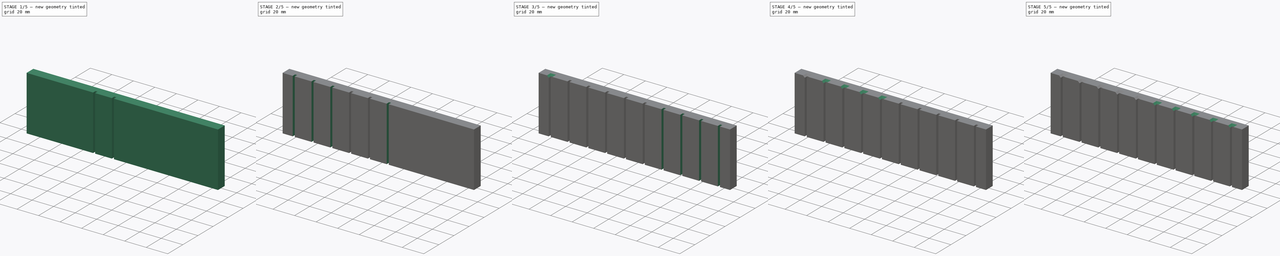
[diagram: build sequence overview — one tinted view per stage of 5, left to right]
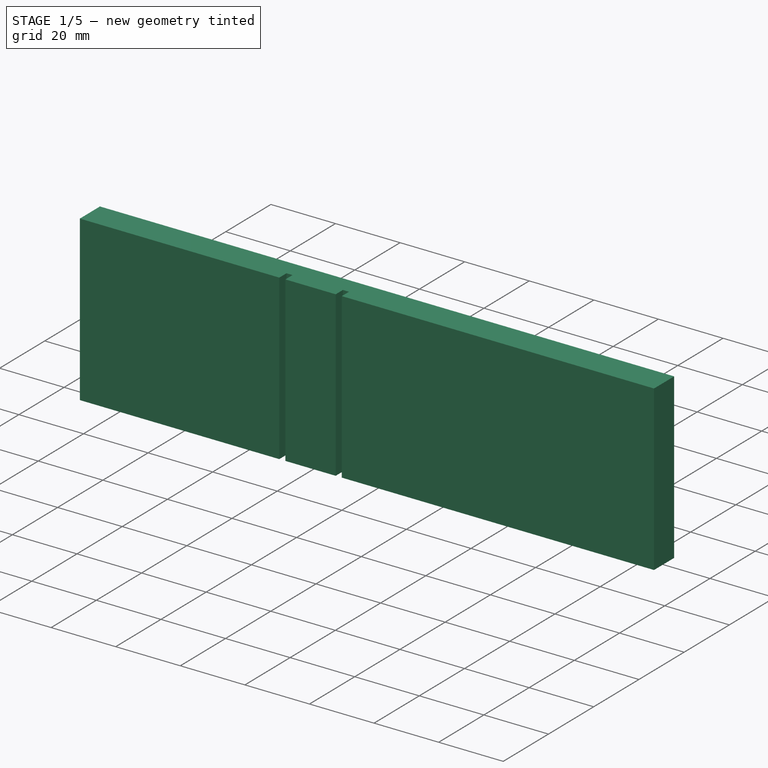
[diagram: stage 1 of 5 — iso view after this stage's code; geometry added in this stage tinted green]
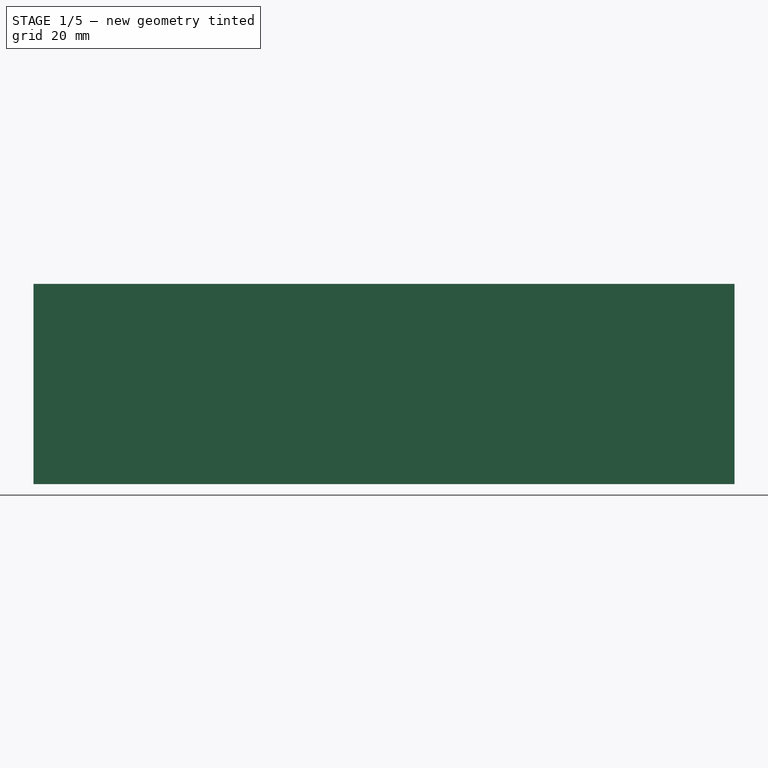
[diagram: stage 1 of 5 — front view after this stage's code; geometry added in this stage tinted green]
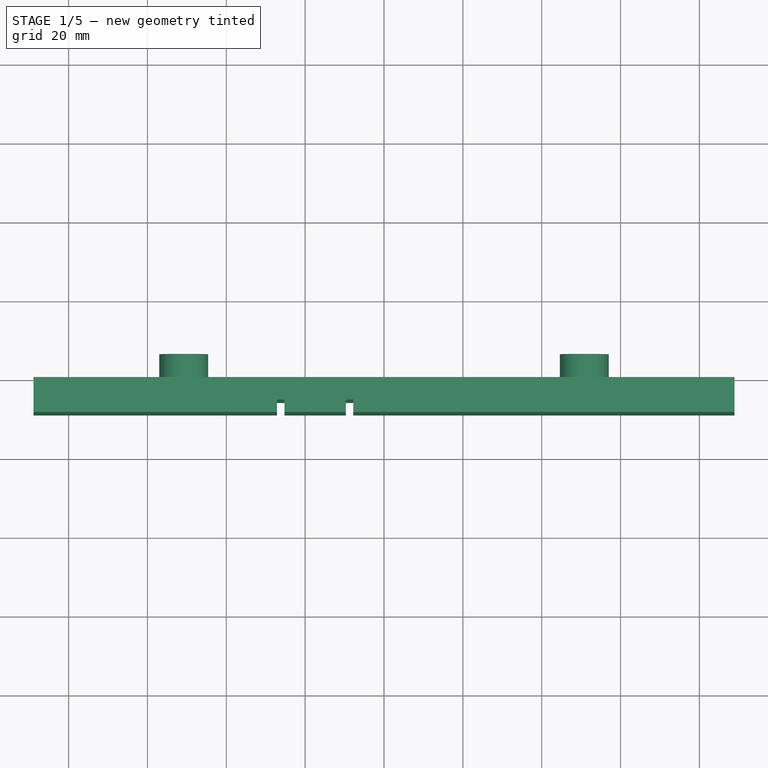
[diagram: stage 1 of 5 — top view after this stage's code; geometry added in this stage tinted green]
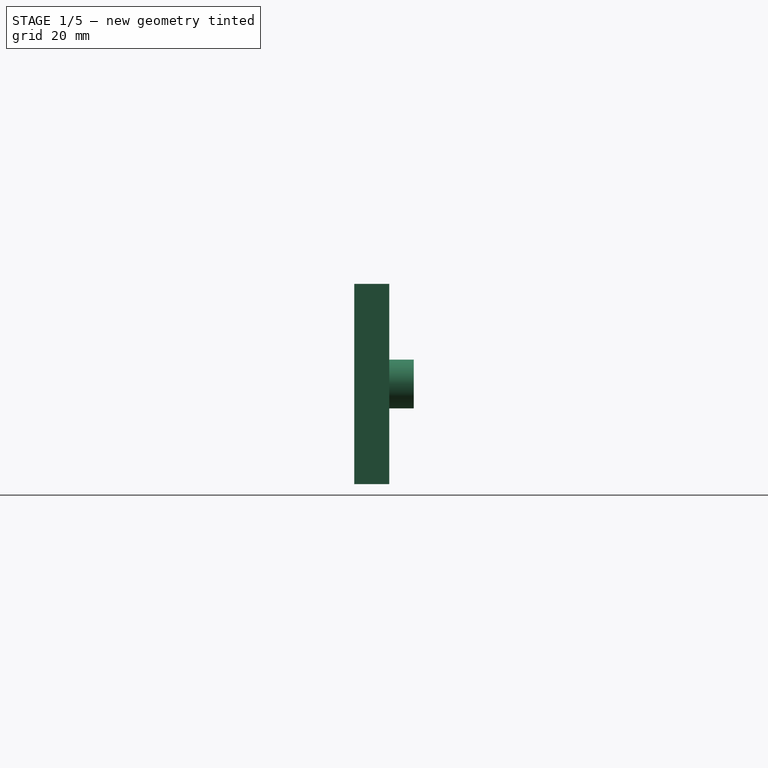
[diagram: stage 1 of 5 — right view after this stage's code; geometry added in this stage tinted green]
FCSTD DOCUMENT  (FreeCAD 0.19R24291 (Git))
Label: slots
License: All rights reserved
LicenseURL: http://en.wikipedia.org/wiki/All_rights_reserved
objects: PartDesign::SubtractiveBox×10, PartDesign::Chamfer×10, PartDesign::AdditiveCylinder×2, Sketcher::SketchObject×1, PartDesign::Pad×1, PartDesign::Body×1
note: 48 computed .brp shape members not serialized (recipe doc carries the construction recipe); baked Part::Feature solids carry a one-line shape summary decoded from their .brp

FEATURE [Sketcher::SketchObject] Sketch
  FullyConstrained = false
  MapMode = 5
  Placement = pos=(0,0,0) rot=(1,0,0;1.5708rad)
  Support = -> [XZ_Plane]
  sketch-geometry (4):
    g0: LineSegment StartX=-88.9 StartY=-25.4 StartZ=0 EndX=88.9 EndY=-25.4 EndZ=0
    g1: LineSegment StartX=88.9 StartY=-25.4 StartZ=0 EndX=88.9 EndY=25.4 EndZ=0
    g2: LineSegment StartX=88.9 StartY=25.4 StartZ=0 EndX=-88.9 EndY=25.4 EndZ=0
    g3: LineSegment StartX=-88.9 StartY=25.4 StartZ=0 EndX=-88.9 EndY=-25.4 EndZ=0
  constraints (8):
    c: Coincident(g0,g1)
    c: Coincident(g1,g2)
    c: Coincident(g2,g3)
    c: Coincident(g3,g0)
    c: Horizontal(g0)
    c: Horizontal(g2)
    c: Vertical(g1)
    c: Vertical(g3)
FEATURE [PartDesign::Pad] Pad
  Direction = (1,1,1)
  Length = 8.89
  Length2 = 99.9998
  Placement = pos=(0,0,0) rot=(1,0,0;1.5708rad)
  Profile = -> Sketch
  Refine = true
  Type = 0
FEATURE [PartDesign::AdditiveCylinder] Cylinder  label="rightnub"
  Angle = 360
  AttacherType = Attacher::AttachEngine3D
  AttachmentOffset = pos=(50.8,0,0) rot=(0,0,1;0rad)
  BaseFeature = -> Pad
  Height = 6.1976
  MapMode = 5
  Placement = pos=(50.8,0,0) rot=(-1,0,0;1.5708rad)
  Radius = 6.1976
  Refine = true
  Support = -> [Pad]
FEATURE [PartDesign::AdditiveCylinder] Cylinder001  label="leftnub"
  Angle = 360
  AttacherType = Attacher::AttachEngine3D
  AttachmentOffset = pos=(-101.6,0,0) rot=(0,0,1;0rad)
  BaseFeature = -> Cylinder
  Height = 6.1976
  MapMode = 5
  Placement = pos=(-50.8,0,0) rot=(-1,0,0;1.5708rad)
  Radius = 6.1976
  Refine = true
  Support = -> [Cylinder]
FEATURE [PartDesign::SubtractiveBox] Box  label="slot4"
  AttacherType = Attacher::AttachEngine3D
  AttachmentOffset = pos=(-9.6774,-25.4,-3.175) rot=(0,0,1;0rad)
  BaseFeature = -> Cylinder001
  Height = 3.175
  Length = 1.8923
  MapMode = 5
  Placement = pos=(-9.6774,-5.715,-25.4) rot=(1,0,0;1.5708rad)
  Refine = true
  Support = -> [Pad]
  Width = 50.8
FEATURE [PartDesign::SubtractiveBox] Box001  label="slot3"
  AttacherType = Attacher::AttachEngine3D
  AttachmentOffset = pos=(-17.4625,0,-3.175) rot=(0,0,1;0rad)
  BaseFeature = -> Box
  Height = 3.175
  Length = 1.8923
  MapMode = 5
  Placement = pos=(-27.1399,-5.715,-25.4) rot=(1,0,0;1.5708rad)
  Refine = true
  Support = -> [Box]
  Width = 50.8
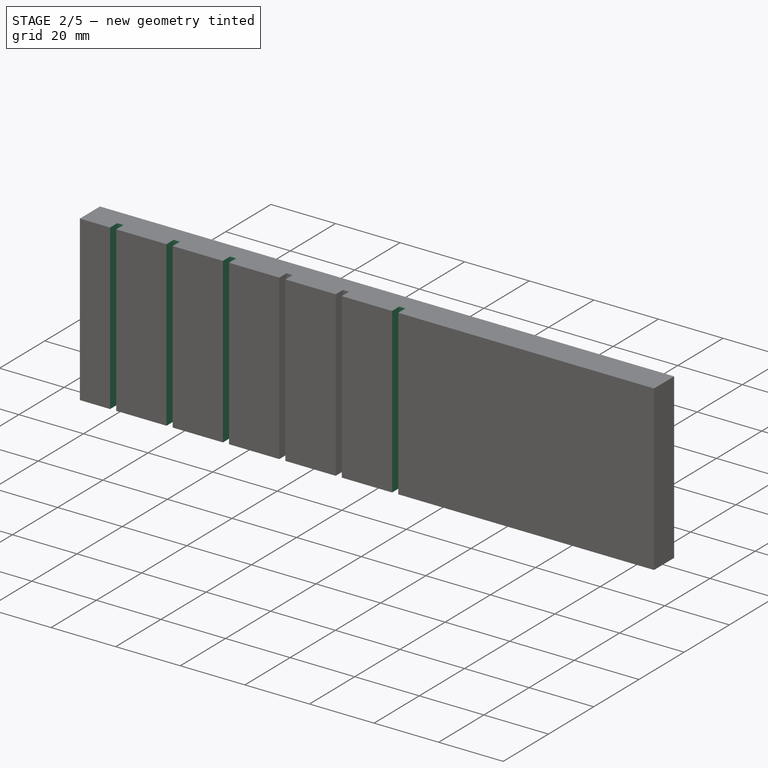
[diagram: stage 2 of 5 — iso view after this stage's code; geometry added in this stage tinted green]
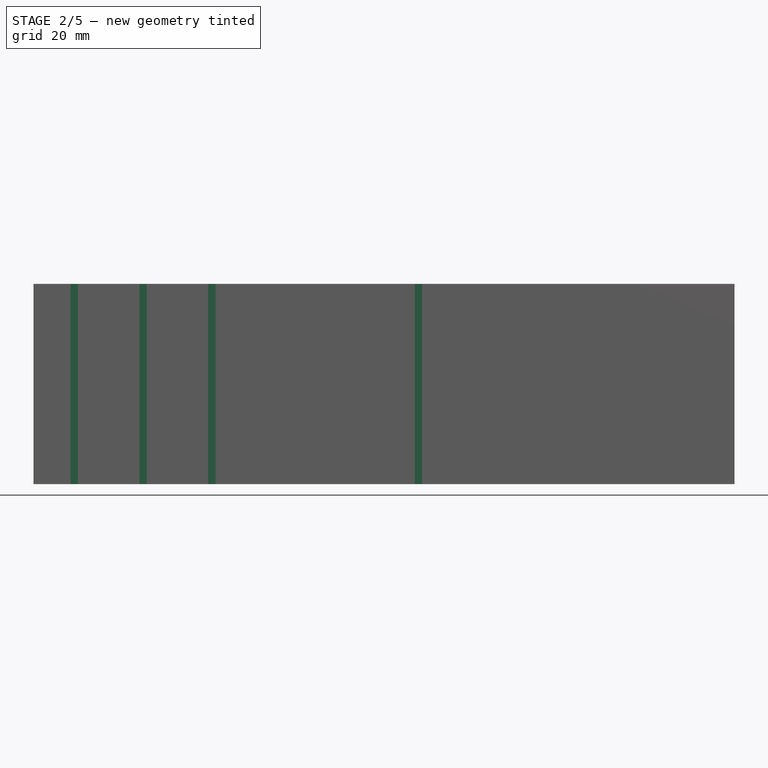
[diagram: stage 2 of 5 — front view after this stage's code; geometry added in this stage tinted green]
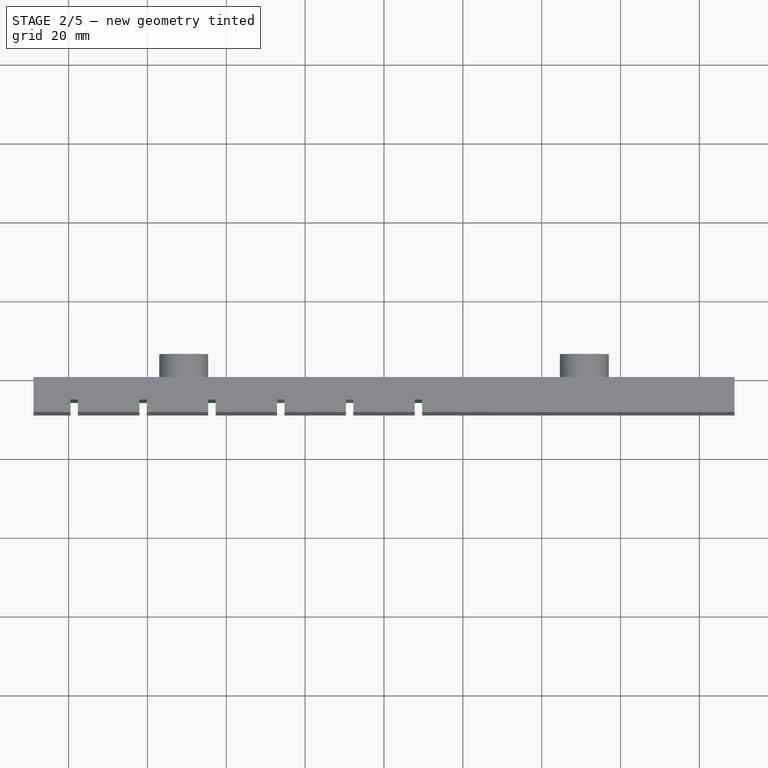
[diagram: stage 2 of 5 — top view after this stage's code; geometry added in this stage tinted green]
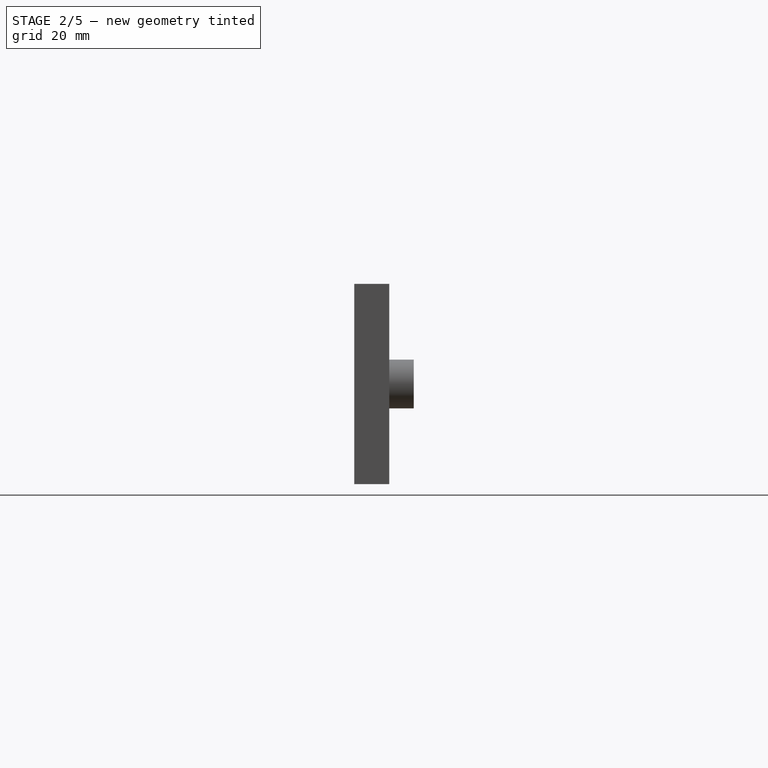
[diagram: stage 2 of 5 — right view after this stage's code; geometry added in this stage tinted green]
FEATURE [PartDesign::SubtractiveBox] Box002  label="slot2"
  AttacherType = Attacher::AttachEngine3D
  AttachmentOffset = pos=(-17.4625,0,-3.175) rot=(0,0,1;0rad)
  BaseFeature = -> Box001
  Height = 3.175
  Length = 1.8923
  MapMode = 5
  Placement = pos=(-44.6024,-5.715,-25.4) rot=(1,0,0;1.5708rad)
  Refine = true
  Support = -> [Box001]
  Width = 50.8
FEATURE [PartDesign::SubtractiveBox] Box003  label="slot1"
  AttacherType = Attacher::AttachEngine3D
  AttachmentOffset = pos=(-17.4625,0,-3.175) rot=(0,0,1;0rad)
  BaseFeature = -> Box002
  Height = 3.175
  Length = 1.8923
  MapMode = 5
  Placement = pos=(-62.0649,-5.715,-25.4) rot=(1,0,0;1.5708rad)
  Refine = true
  Support = -> [Box002]
  Width = 50.8
FEATURE [PartDesign::SubtractiveBox] Box004  label="slot0left"
  AttacherType = Attacher::AttachEngine3D
  AttachmentOffset = pos=(-17.4625,0,-3.175) rot=(0,0,1;0rad)
  BaseFeature = -> Box003
  Height = 3.175
  Length = 1.8923
  MapMode = 5
  Placement = pos=(-79.5274,-5.715,-25.4) rot=(1,0,0;1.5708rad)
  Refine = true
  Support = -> [Box003]
  Width = 50.8
FEATURE [PartDesign::SubtractiveBox] Box005  label="slot5"
  AttacherType = Attacher::AttachEngine3D
  AttachmentOffset = pos=(87.3125,0,-3.175) rot=(0,0,1;0rad)
  BaseFeature = -> Box004
  Height = 3.175
  Length = 1.8923
  MapMode = 5
  Placement = pos=(7.7851,-5.715,-25.4) rot=(1,0,0;1.5708rad)
  Refine = true
  Support = -> [Box004]
  Width = 50.8
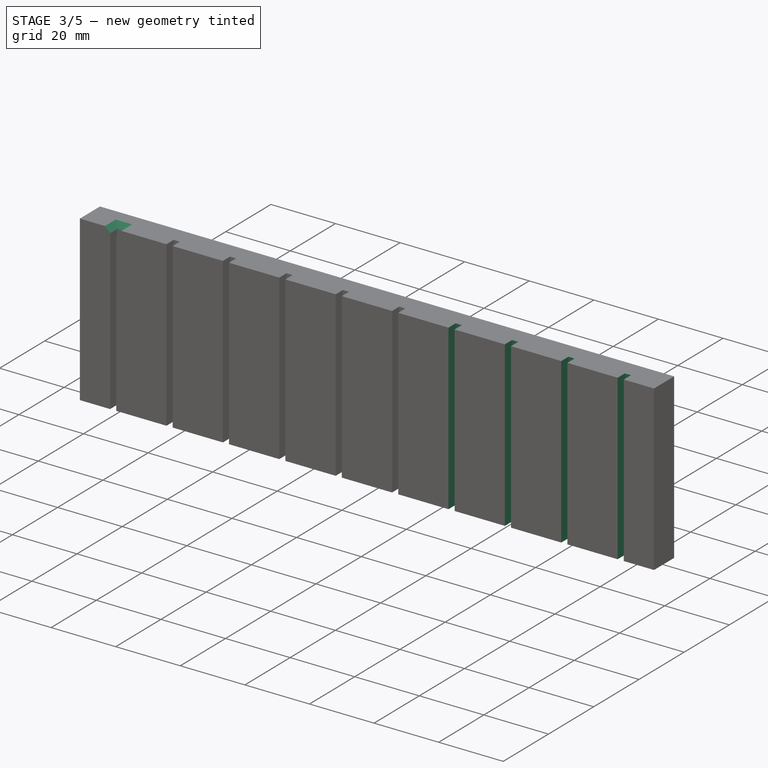
[diagram: stage 3 of 5 — iso view after this stage's code; geometry added in this stage tinted green]
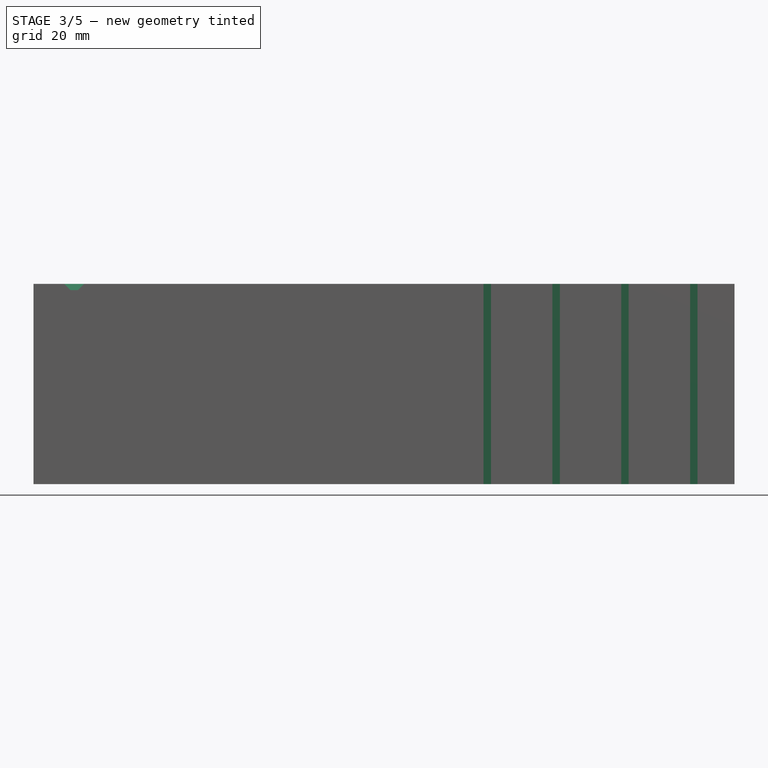
[diagram: stage 3 of 5 — front view after this stage's code; geometry added in this stage tinted green]
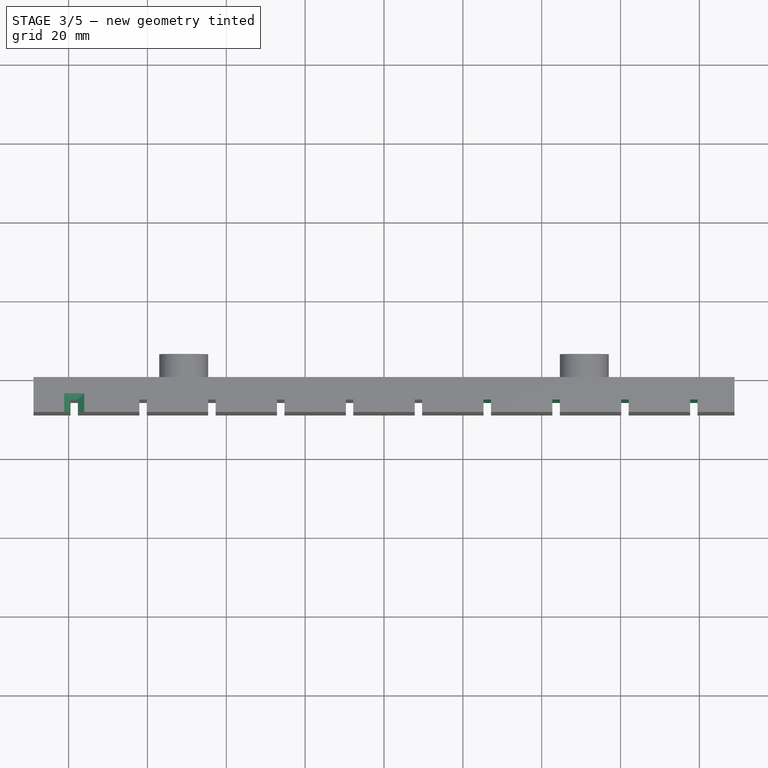
[diagram: stage 3 of 5 — top view after this stage's code; geometry added in this stage tinted green]
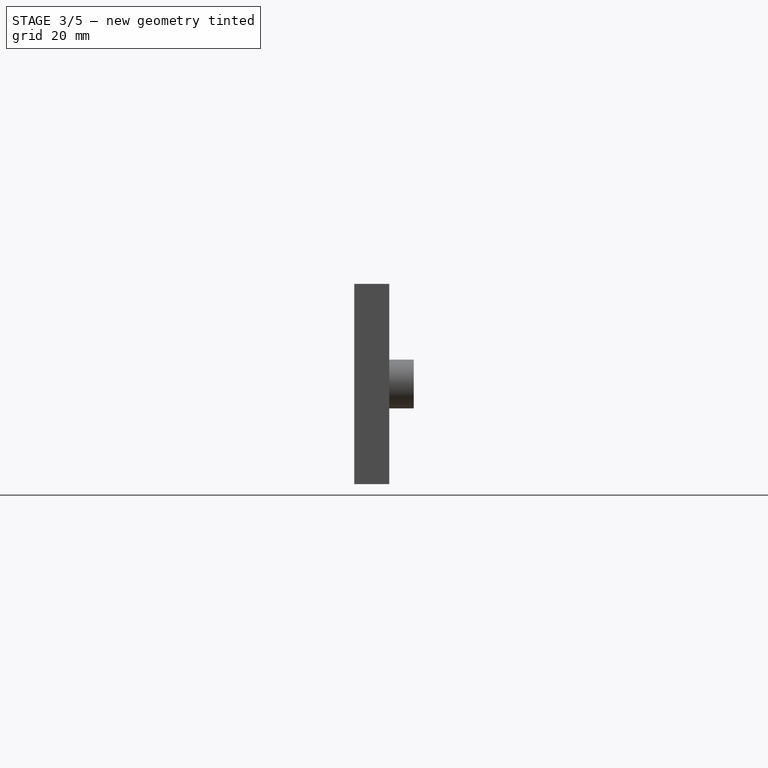
[diagram: stage 3 of 5 — right view after this stage's code; geometry added in this stage tinted green]
FEATURE [PartDesign::SubtractiveBox] Box006  label="slot6"
  AttacherType = Attacher::AttachEngine3D
  AttachmentOffset = pos=(17.4625,0,-3.175) rot=(0,0,1;0rad)
  BaseFeature = -> Box005
  Height = 3.175
  Length = 1.8923
  MapMode = 5
  Placement = pos=(25.2476,-5.715,-25.4) rot=(1,0,0;1.5708rad)
  Refine = true
  Support = -> [Box005]
  Width = 50.8
FEATURE [PartDesign::SubtractiveBox] Box007  label="slot7"
  AttacherType = Attacher::AttachEngine3D
  AttachmentOffset = pos=(17.4625,0,-3.175) rot=(0,0,1;0rad)
  BaseFeature = -> Box006
  Height = 3.175
  Length = 1.8923
  MapMode = 5
  Placement = pos=(42.7101,-5.715,-25.4) rot=(1,0,0;1.5708rad)
  Refine = true
  Support = -> [Box006]
  Width = 50.8
FEATURE [PartDesign::SubtractiveBox] Box008  label="slot8"
  AttacherType = Attacher::AttachEngine3D
  AttachmentOffset = pos=(17.4625,0,-3.175) rot=(0,0,1;0rad)
  BaseFeature = -> Box007
  Height = 3.175
  Length = 1.8923
  MapMode = 5
  Placement = pos=(60.1726,-5.715,-25.4) rot=(1,0,0;1.5708rad)
  Refine = true
  Support = -> [Box007]
  Width = 50.8
FEATURE [PartDesign::SubtractiveBox] Box009  label="slot9right"
  AttacherType = Attacher::AttachEngine3D
  AttachmentOffset = pos=(17.4625,0,-3.175) rot=(0,0,1;0rad)
  BaseFeature = -> Box008
  Height = 3.175
  Length = 1.8923
  MapMode = 5
  Placement = pos=(77.6351,-5.715,-25.4) rot=(1,0,0;1.5708rad)
  Refine = true
  Support = -> [Box008]
  Width = 50.8
FEATURE [PartDesign::Chamfer] Chamfer  label="slot0cham"
  Angle = 45
  Base = -> Box009 [Edge131,Edge129,Edge126]
  BaseFeature = -> Box009
  ChamferType = 0
  FlipDirection = false
  Placement = pos=(77.6351,-5.715,-25.4) rot=(1,0,0;1.5708rad)
  Refine = true
  Size = 1.5875
  Size2 = 1
  SupportTransform = false
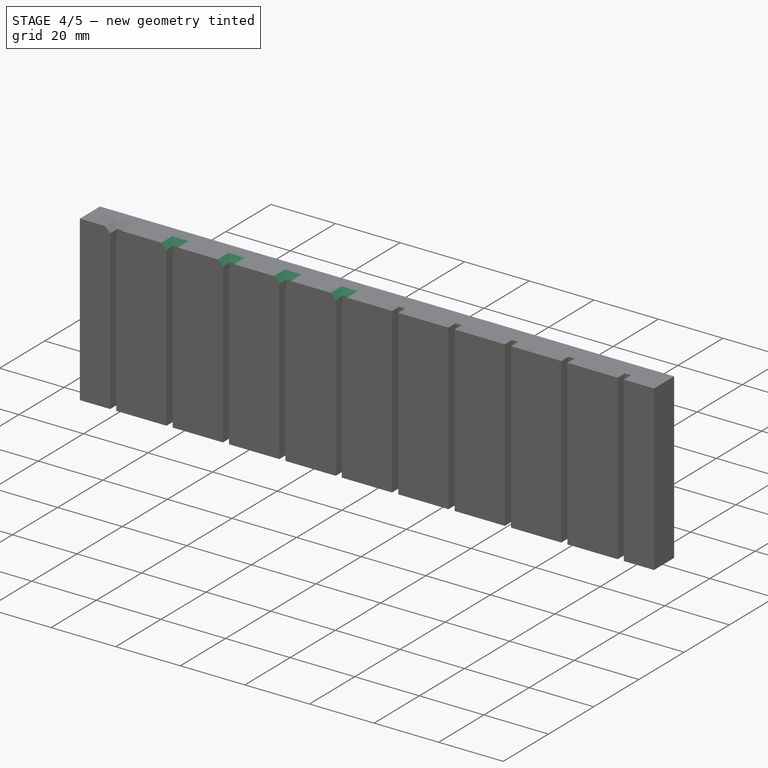
[diagram: stage 4 of 5 — iso view after this stage's code; geometry added in this stage tinted green]
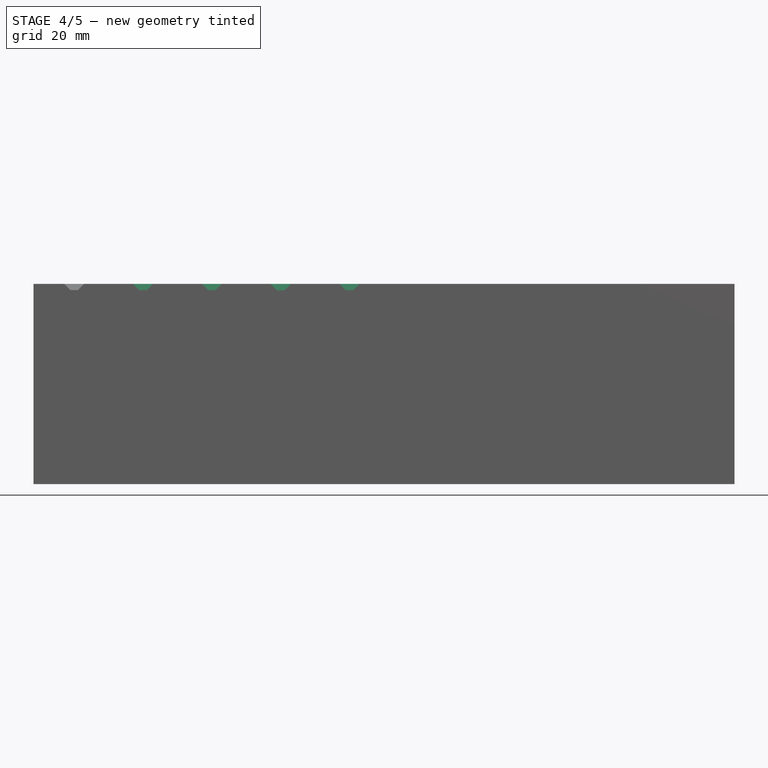
[diagram: stage 4 of 5 — front view after this stage's code; geometry added in this stage tinted green]
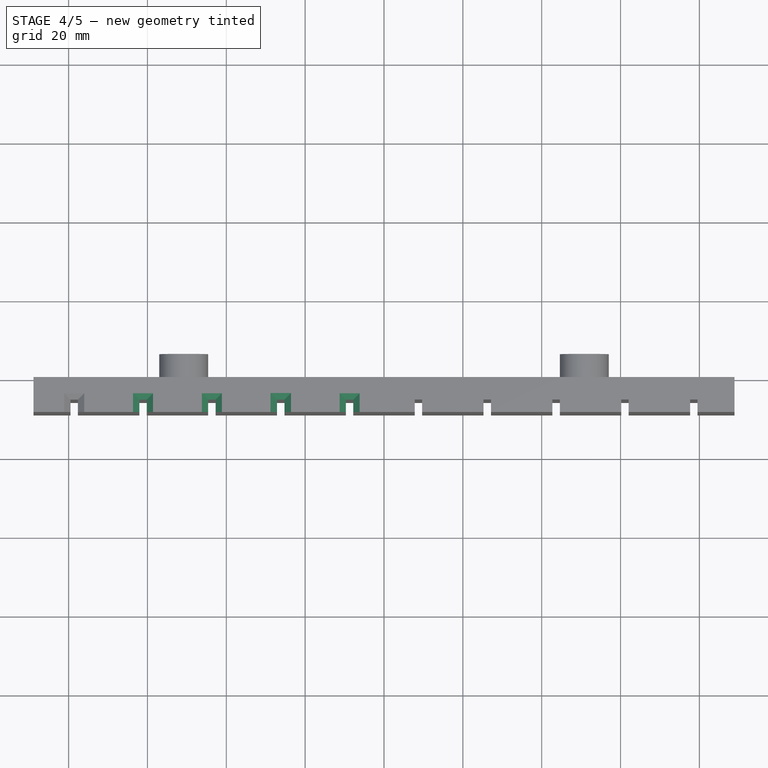
[diagram: stage 4 of 5 — top view after this stage's code; geometry added in this stage tinted green]
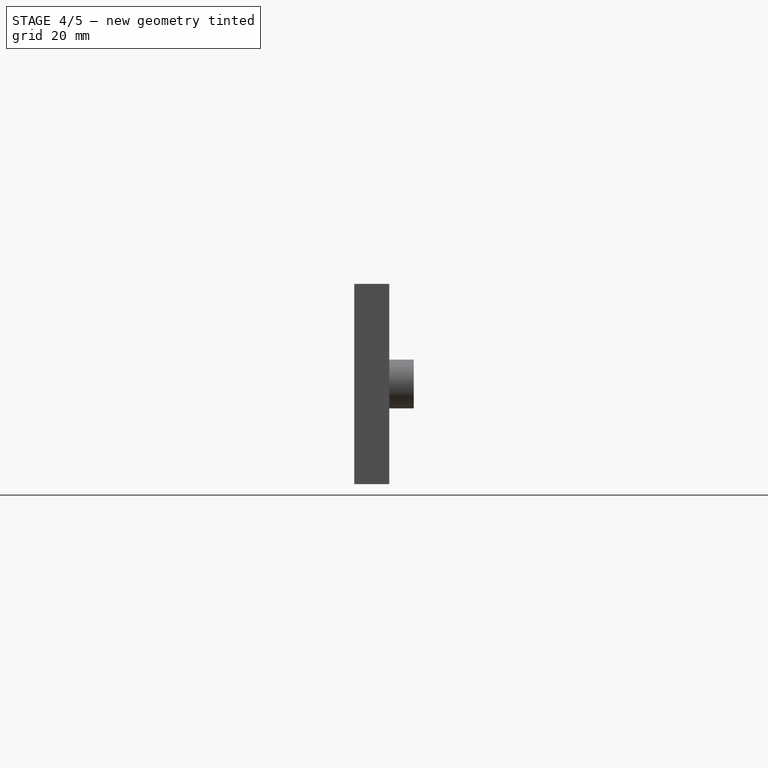
[diagram: stage 4 of 5 — right view after this stage's code; geometry added in this stage tinted green]
FEATURE [PartDesign::Chamfer] Chamfer001  label="slot1cham"
  Angle = 45
  Base = -> Chamfer [Edge60,Edge62,Edge64]
  BaseFeature = -> Chamfer
  ChamferType = 0
  FlipDirection = false
  Placement = pos=(77.6351,-5.715,-25.4) rot=(1,0,0;1.5708rad)
  Refine = true
  Size = 1.5875
  Size2 = 1
  SupportTransform = false
FEATURE [PartDesign::Chamfer] Chamfer002  label="slot2cham"
  Angle = 45
  Base = -> Chamfer001 [Edge17,Edge15,Edge19]
  BaseFeature = -> Chamfer001
  ChamferType = 0
  FlipDirection = false
  Placement = pos=(77.6351,-5.715,-25.4) rot=(1,0,0;1.5708rad)
  Refine = true
  Size = 1.5875
  Size2 = 1
  SupportTransform = false
FEATURE [PartDesign::Chamfer] Chamfer003  label="slot3cham"
  Angle = 45
  Base = -> Chamfer002 [Edge10,Edge12,Edge14]
  BaseFeature = -> Chamfer002
  ChamferType = 0
  FlipDirection = false
  Placement = pos=(77.6351,-5.715,-25.4) rot=(1,0,0;1.5708rad)
  Refine = true
  Size = 1.65608
  Size2 = 1
  SupportTransform = false
FEATURE [PartDesign::Chamfer] Chamfer004  label="slot4cham"
  Angle = 45
  Base = -> Chamfer003 [Edge10,Edge12,Edge14]
  BaseFeature = -> Chamfer003
  ChamferType = 0
  FlipDirection = false
  Placement = pos=(77.6351,-5.715,-25.4) rot=(1,0,0;1.5708rad)
  Refine = true
  Size = 1.5875
  Size2 = 1
  SupportTransform = false
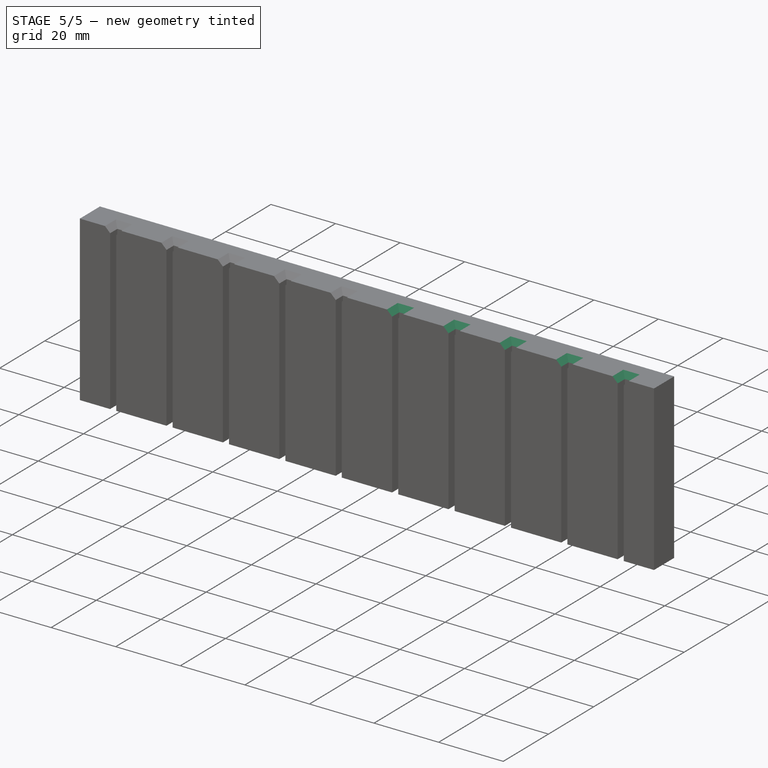
[diagram: stage 5 of 5 — iso view after this stage's code; geometry added in this stage tinted green]
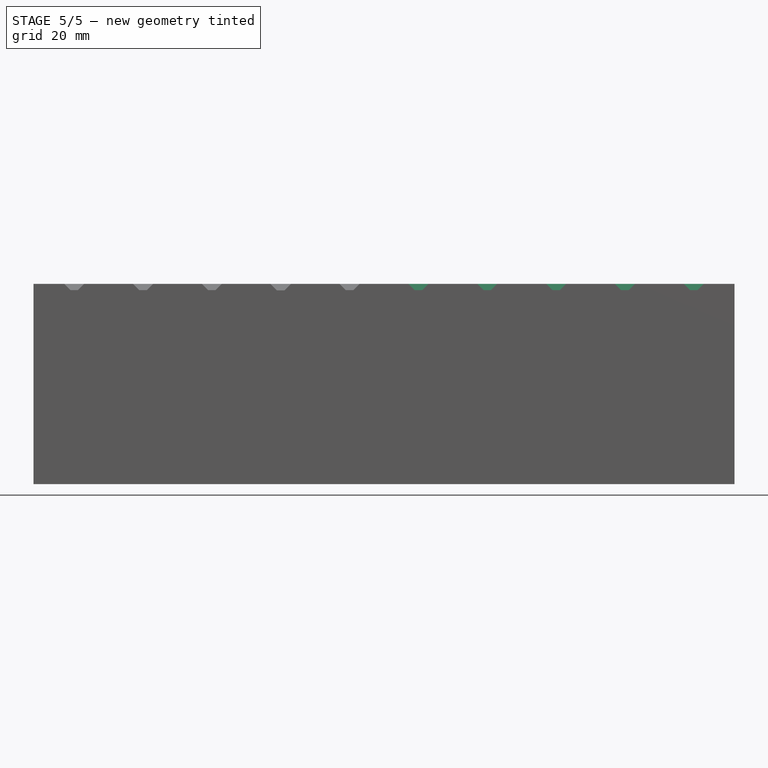
[diagram: stage 5 of 5 — front view after this stage's code; geometry added in this stage tinted green]
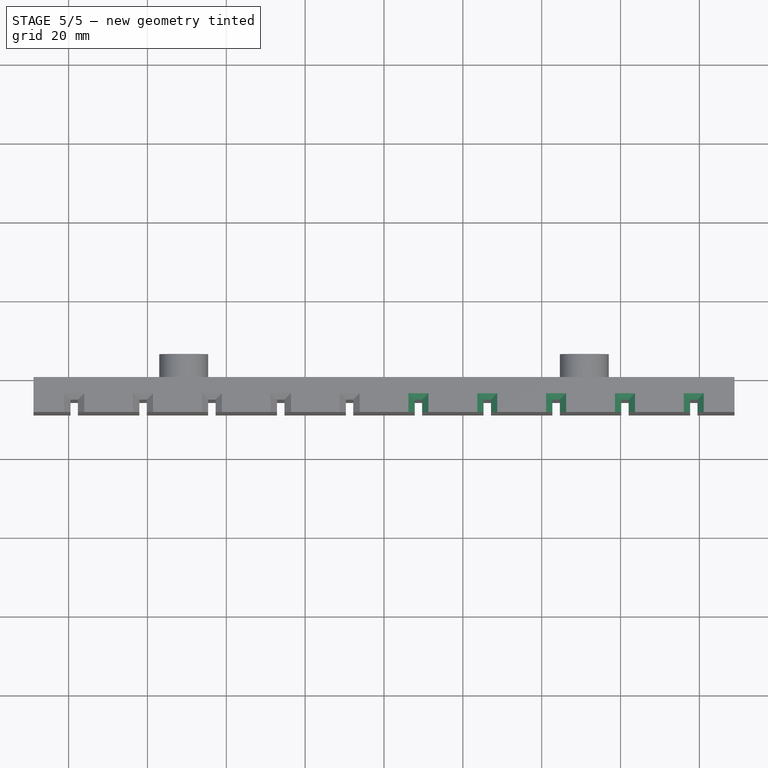
[diagram: stage 5 of 5 — top view after this stage's code; geometry added in this stage tinted green]
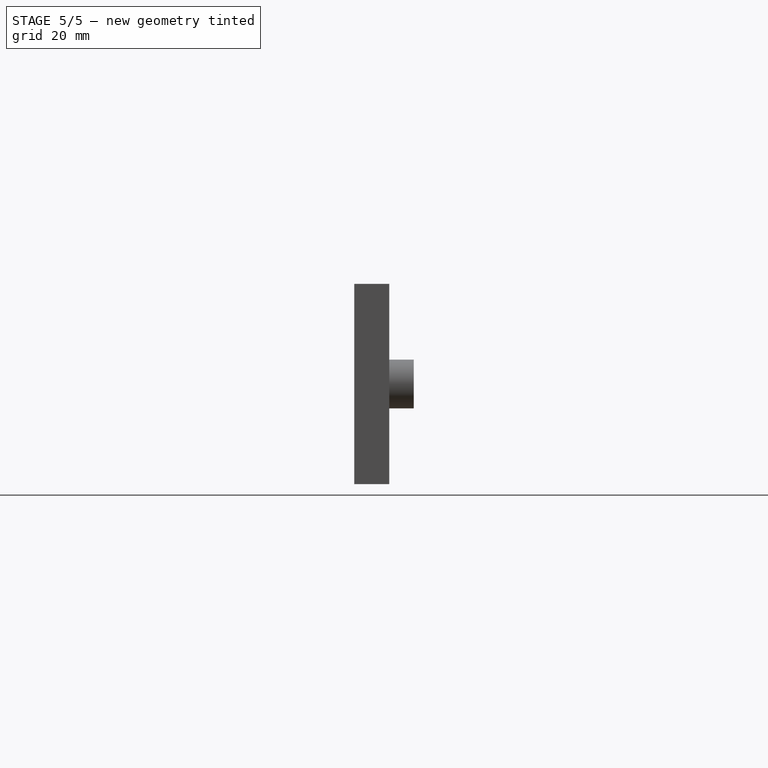
[diagram: stage 5 of 5 — right view after this stage's code; geometry added in this stage tinted green]
FEATURE [PartDesign::Chamfer] Chamfer005  label="slot5cham"
  Angle = 45
  Base = -> Chamfer004 [Edge10,Edge12,Edge14]
  BaseFeature = -> Chamfer004
  ChamferType = 0
  FlipDirection = false
  Placement = pos=(77.6351,-5.715,-25.4) rot=(1,0,0;1.5708rad)
  Refine = true
  Size = 1.5875
  Size2 = 1
  SupportTransform = false
FEATURE [PartDesign::Chamfer] Chamfer006  label="slot6cham"
  Angle = 45
  Base = -> Chamfer005 [Edge10,Edge12,Edge14]
  BaseFeature = -> Chamfer005
  ChamferType = 0
  FlipDirection = false
  Placement = pos=(77.6351,-5.715,-25.4) rot=(1,0,0;1.5708rad)
  Refine = true
  Size = 1.5875
  Size2 = 1
  SupportTransform = false
FEATURE [PartDesign::Chamfer] Chamfer007  label="slot7cham"
  Angle = 45
  Base = -> Chamfer006 [Edge10,Edge12,Edge14]
  BaseFeature = -> Chamfer006
  ChamferType = 0
  FlipDirection = false
  Placement = pos=(77.6351,-5.715,-25.4) rot=(1,0,0;1.5708rad)
  Refine = true
  Size = 1.5875
  Size2 = 1
  SupportTransform = false
FEATURE [PartDesign::Chamfer] Chamfer008  label="slot8cham"
  Angle = 45
  Base = -> Chamfer007 [Edge10,Edge12,Edge14]
  BaseFeature = -> Chamfer007
  ChamferType = 0
  FlipDirection = false
  Placement = pos=(77.6351,-5.715,-25.4) rot=(1,0,0;1.5708rad)
  Refine = true
  Size = 1.5875
  Size2 = 1
  SupportTransform = false
FEATURE [PartDesign::Chamfer] Chamfer009  label="slot9cham"
  Angle = 45
  Base = -> Chamfer008 [Edge10,Edge12,Edge14]
  BaseFeature = -> Chamfer008
  ChamferType = 0
  FlipDirection = false
  Placement = pos=(77.6351,-5.715,-25.4) rot=(1,0,0;1.5708rad)
  Refine = true
  Size = 1.5875
  Size2 = 1
  SupportTransform = false
FEATURE [PartDesign::Body] Body
  Group = -> [Sketch,Pad,Cylinder,Cylinder001,Box,Box001,Box002,Box003,Box004,Box005,Box006,Box007,Box008,Box009,Chamfer,Chamfer001,Chamfer002,Chamfer003,Chamfer004,Chamfer005,Chamfer006,Chamfer007,Chamfer008,Chamfer009]
  Origin = -> Origin
  Tip = -> Chamfer009
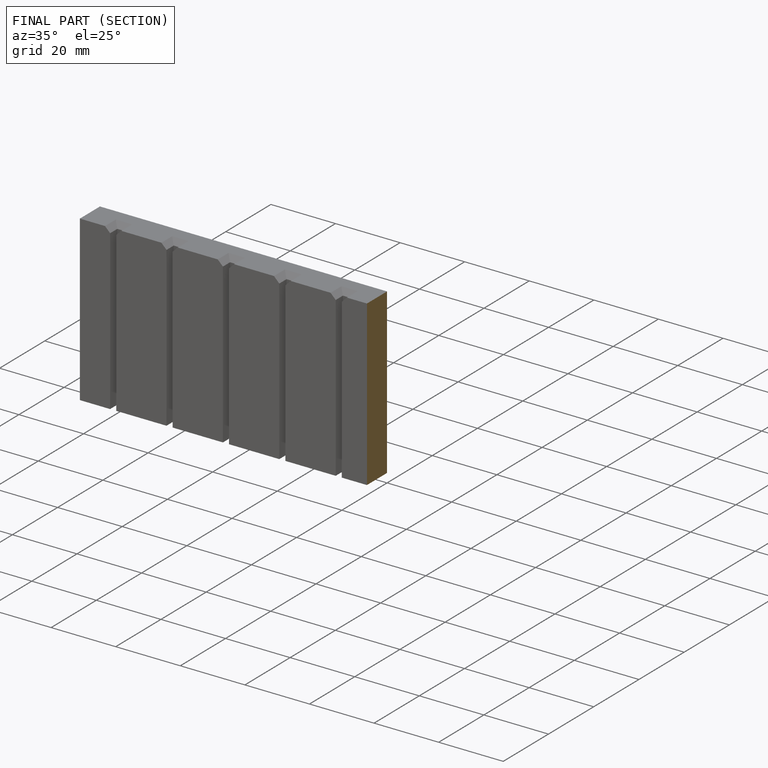
[diagram: finished part — half-section view (interior)]
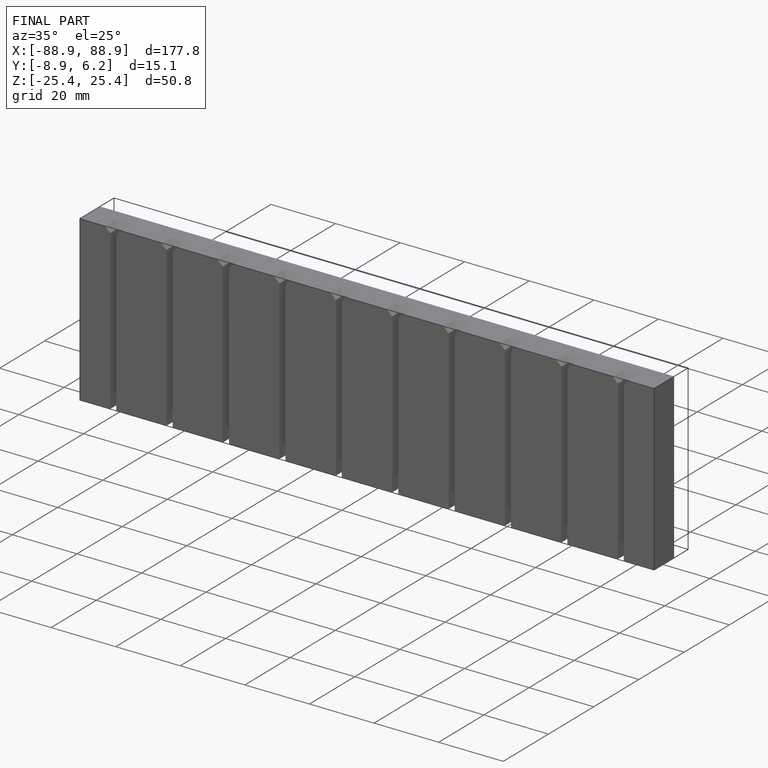
[diagram: finished part — iso view with bounding-box wireframe]
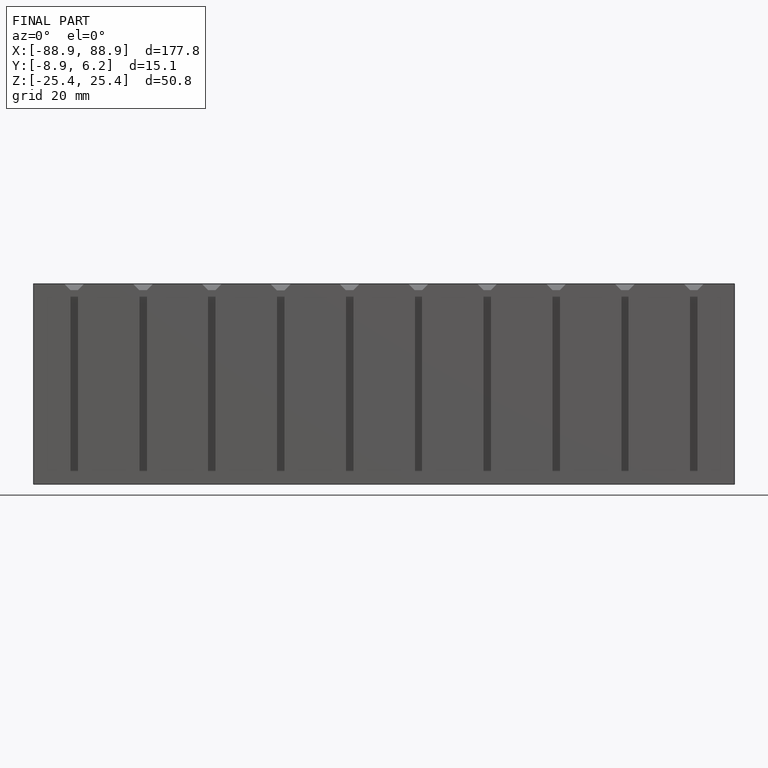
[diagram: finished part — front view with bounding-box wireframe]
